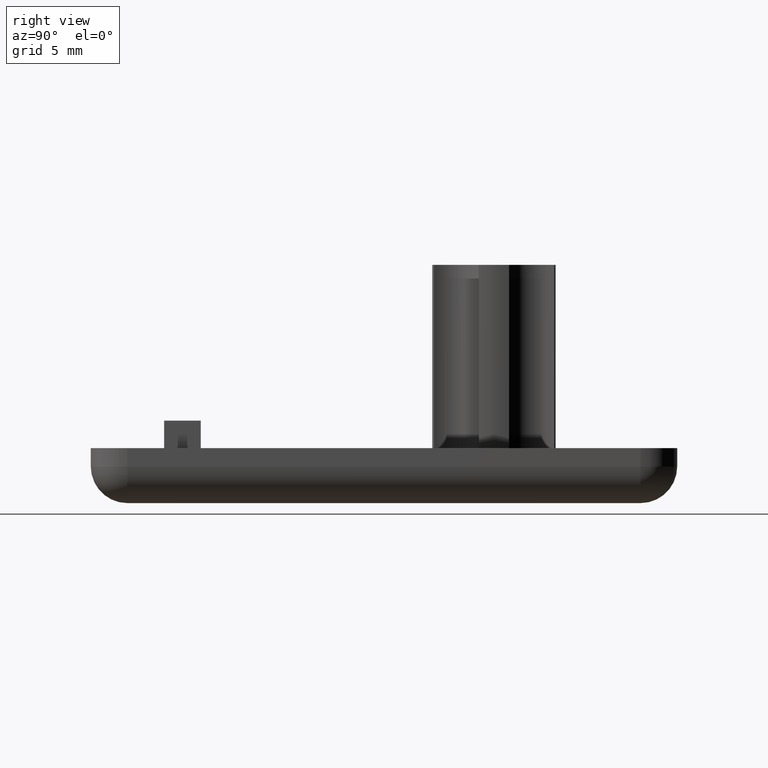
[diagram: clean part render]
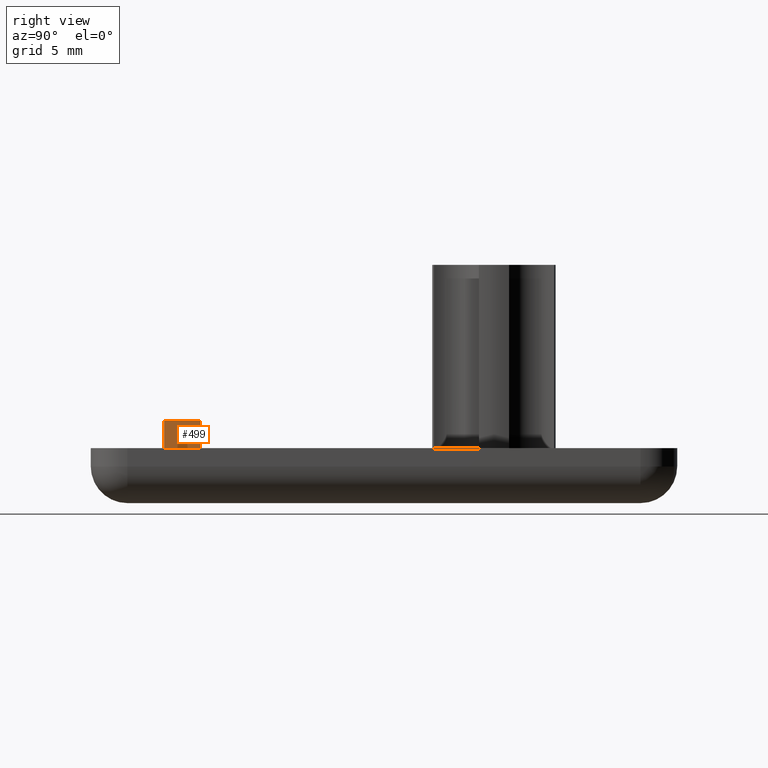
[diagram: same view with one face highlighted and labeled with its STEP entity id]
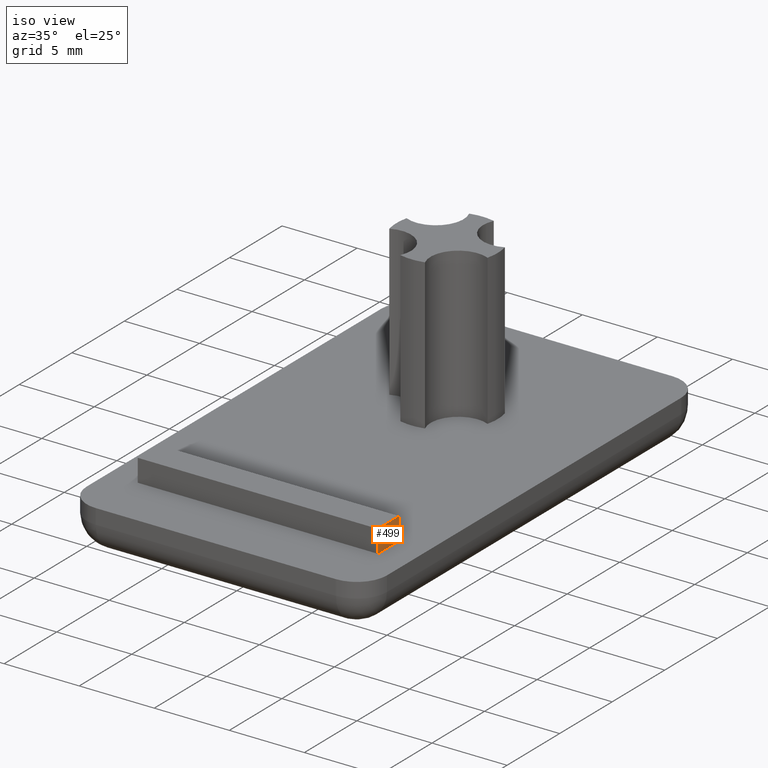
[diagram: same view with one face highlighted and labeled with its STEP entity id]
A machine part, right view. The second image highlights one B-rep face of the part: STEP entity #499.
A second angle (iso view) of the same face is appended — the face is thin or edge-on in the first view.
In plain terms, the highlighted planar face has unit normal (1, 0, 0).
Its self-contained STEP definition (entity closure, byte-faithful):
#20=PLANE('',#548);
#46=FACE_OUTER_BOUND('',#77,.T.);
#77=EDGE_LOOP('',(#374,#375,#376,#377));
#113=LINE('',#818,#153);
#114=LINE('',#820,#154);
#115=LINE('',#822,#155);
#116=LINE('',#823,#156);
#153=VECTOR('',#658,2.);
#154=VECTOR('',#659,1.5);
#155=VECTOR('',#660,2.);
#156=VECTOR('',#661,1.5);
#227=VERTEX_POINT('',#816);
#228=VERTEX_POINT('',#817);
#229=VERTEX_POINT('',#819);
#230=VERTEX_POINT('',#821);
#283=EDGE_CURVE('',#227,#228,#113,.T.);
#284=EDGE_CURVE('',#227,#229,#114,.T.);
#285=EDGE_CURVE('',#230,#229,#115,.T.);
#286=EDGE_CURVE('',#228,#230,#116,.T.);
#374=ORIENTED_EDGE('',*,*,#283,.F.);
#375=ORIENTED_EDGE('',*,*,#284,.T.);
#376=ORIENTED_EDGE('',*,*,#285,.F.);
#377=ORIENTED_EDGE('',*,*,#286,.F.);
#499=ADVANCED_FACE('',(#46),#20,.T.);
#548=AXIS2_PLACEMENT_3D('',#815,#656,#657);
#656=DIRECTION('center_axis',(1.,0.,0.));
#657=DIRECTION('ref_axis',(0.,1.,0.));
#658=DIRECTION('',(0.,-1.,0.));
#659=DIRECTION('',(0.,0.,1.));
#660=DIRECTION('',(0.,1.,0.));
#661=DIRECTION('',(0.,0.,1.));
#815=CARTESIAN_POINT('Origin',(7.99999999999998,-18.,3.));
#816=CARTESIAN_POINT('',(7.99999999999998,-16.,3.));
#817=CARTESIAN_POINT('',(7.99999999999998,-18.,3.));
#818=CARTESIAN_POINT('',(7.99999999999998,-12.,3.));
#819=CARTESIAN_POINT('',(7.99999999999998,-16.,4.5));
#820=CARTESIAN_POINT('',(7.99999999999998,-16.,3.));
#821=CARTESIAN_POINT('',(7.99999999999998,-18.,4.5));
#822=CARTESIAN_POINT('',(7.99999999999998,-16.,4.5));
#823=CARTESIAN_POINT('',(7.99999999999998,-18.,3.));